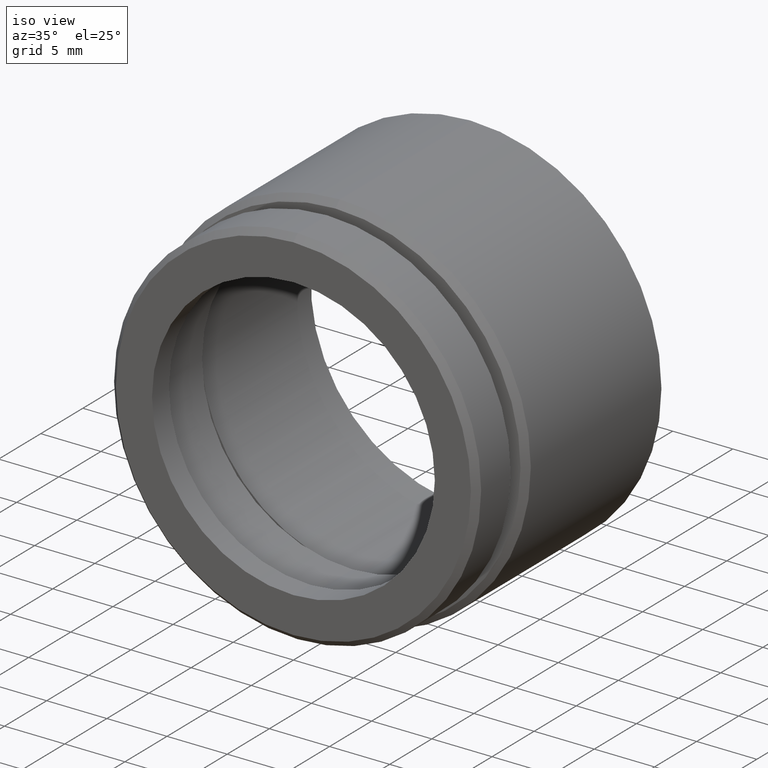
[diagram: clean part render]
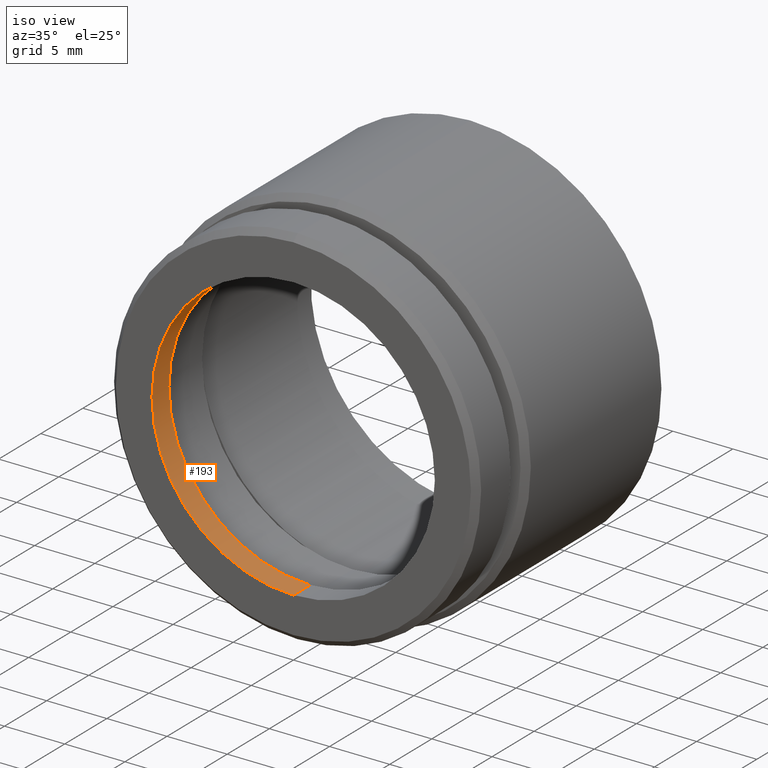
[diagram: same view with one face highlighted and labeled with its STEP entity id]
A machine part, iso view. The second image highlights one B-rep face of the part: STEP entity #193.
In plain terms, the highlighted cylindrical surface (partial cylindrical patch) has radius 11.75 mm, axis along (-0, -1, -0).
Its self-contained STEP definition (entity closure, byte-faithful):
#4 = DIRECTION ( 'NONE',  ( 0.0000000000000000000, 0.0000000000000000000, -1.000000000000000000 ) ) ;
#11 = EDGE_CURVE ( 'NONE', #350, #409, #469, .T. ) ;
#12 = DIRECTION ( 'NONE',  ( -0.0000000000000000000, -1.000000000000000000, -0.0000000000000000000 ) ) ;
#27 = CARTESIAN_POINT ( 'NONE',  ( 0.0000000000000000000, 2.000000000000000000, 0.0000000000000000000 ) ) ;
#59 = DIRECTION ( 'NONE',  ( -0.0000000000000000000, -1.000000000000000000, -0.0000000000000000000 ) ) ;
#63 = CARTESIAN_POINT ( 'NONE',  ( 1.438959988998140200E-015, 0.0000000000000000000, 11.75000000000000000 ) ) ;
#72 = AXIS2_PLACEMENT_3D ( 'NONE', #569, #558, #561 ) ;
#128 = AXIS2_PLACEMENT_3D ( 'NONE', #543, #59, #584 ) ;
#134 = VERTEX_POINT ( 'NONE', #63 ) ;
#154 = VERTEX_POINT ( 'NONE', #271 ) ;
#173 = DIRECTION ( 'NONE',  ( -0.0000000000000000000, -1.000000000000000000, -0.0000000000000000000 ) ) ;
#176 = CARTESIAN_POINT ( 'NONE',  ( 0.0000000000000000000, 0.0000000000000000000, -11.75000000000000000 ) ) ;
#193 = ADVANCED_FACE ( 'NONE', ( #496 ), #842, .F. ) ;
#271 = CARTESIAN_POINT ( 'NONE',  ( 0.0000000000000000000, 0.0000000000000000000, -11.75000000000000000 ) ) ;
#274 = CIRCLE ( 'NONE', #128, 11.75000000000000000 ) ;
#289 = DIRECTION ( 'NONE',  ( -0.0000000000000000000, -1.000000000000000000, -0.0000000000000000000 ) ) ;
#297 = LINE ( 'NONE', #633, #817 ) ;
#314 = CARTESIAN_POINT ( 'NONE',  ( 0.0000000000000000000, 2.000000000000000000, -11.75000000000000000 ) ) ;
#316 = VECTOR ( 'NONE', #173, 1000.000000000000000 ) ;
#350 = VERTEX_POINT ( 'NONE', #613 ) ;
#396 = AXIS2_PLACEMENT_3D ( 'NONE', #27, #12, #4 ) ;
#409 = VERTEX_POINT ( 'NONE', #314 ) ;
#458 = ORIENTED_EDGE ( 'NONE', *, *, #627, .T. ) ;
#460 = EDGE_CURVE ( 'NONE', #409, #154, #485, .T. ) ;
#469 = CIRCLE ( 'NONE', #396, 11.75000000000000000 ) ;
#485 = LINE ( 'NONE', #176, #316 ) ;
#496 = FACE_OUTER_BOUND ( 'NONE', #718, .T. ) ;
#499 = ORIENTED_EDGE ( 'NONE', *, *, #11, .F. ) ;
#543 = CARTESIAN_POINT ( 'NONE',  ( 0.0000000000000000000, 0.0000000000000000000, 0.0000000000000000000 ) ) ;
#558 = DIRECTION ( 'NONE',  ( -0.0000000000000000000, -1.000000000000000000, -0.0000000000000000000 ) ) ;
#561 = DIRECTION ( 'NONE',  ( 0.0000000000000000000, 0.0000000000000000000, -1.000000000000000000 ) ) ;
#569 = CARTESIAN_POINT ( 'NONE',  ( 0.0000000000000000000, 0.0000000000000000000, 0.0000000000000000000 ) ) ;
#584 = DIRECTION ( 'NONE',  ( 0.0000000000000000000, 0.0000000000000000000, -1.000000000000000000 ) ) ;
#613 = CARTESIAN_POINT ( 'NONE',  ( 1.438959988998140200E-015, 2.000000000000000000, 11.75000000000000000 ) ) ;
#627 = EDGE_CURVE ( 'NONE', #350, #134, #297, .T. ) ;
#633 = CARTESIAN_POINT ( 'NONE',  ( 1.438959988998140200E-015, 0.0000000000000000000, 11.75000000000000000 ) ) ;
#682 = EDGE_CURVE ( 'NONE', #134, #154, #274, .T. ) ;
#693 = ORIENTED_EDGE ( 'NONE', *, *, #460, .F. ) ;
#718 = EDGE_LOOP ( 'NONE', ( #499, #458, #852, #693 ) ) ;
#817 = VECTOR ( 'NONE', #289, 1000.000000000000000 ) ;
#842 = CYLINDRICAL_SURFACE ( 'NONE', #72, 11.75000000000000000 ) ;
#852 = ORIENTED_EDGE ( 'NONE', *, *, #682, .T. ) ;